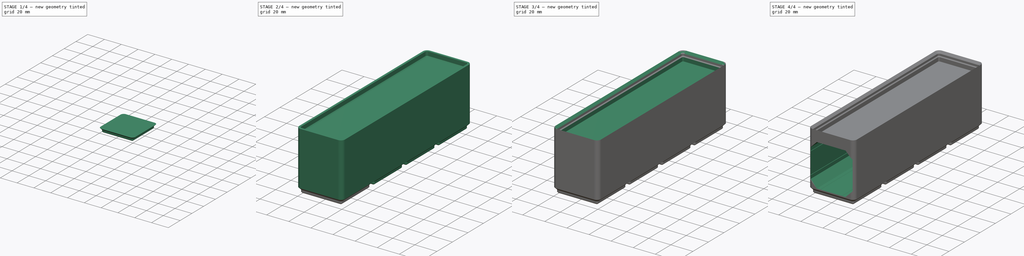
[diagram: build sequence overview — one tinted view per stage of 4, left to right]
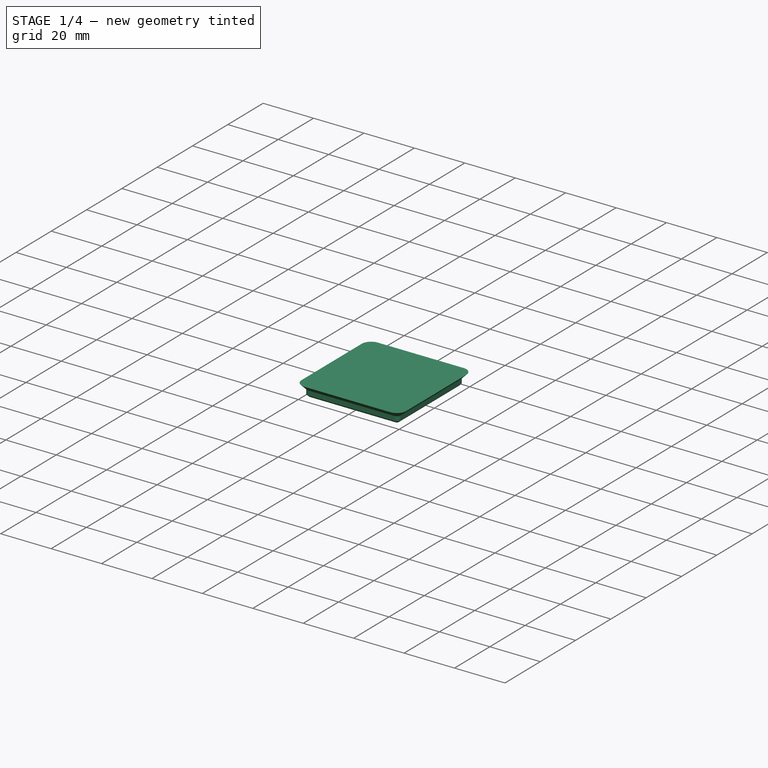
[diagram: stage 1 of 4 — iso view after this stage's code; geometry added in this stage tinted green]
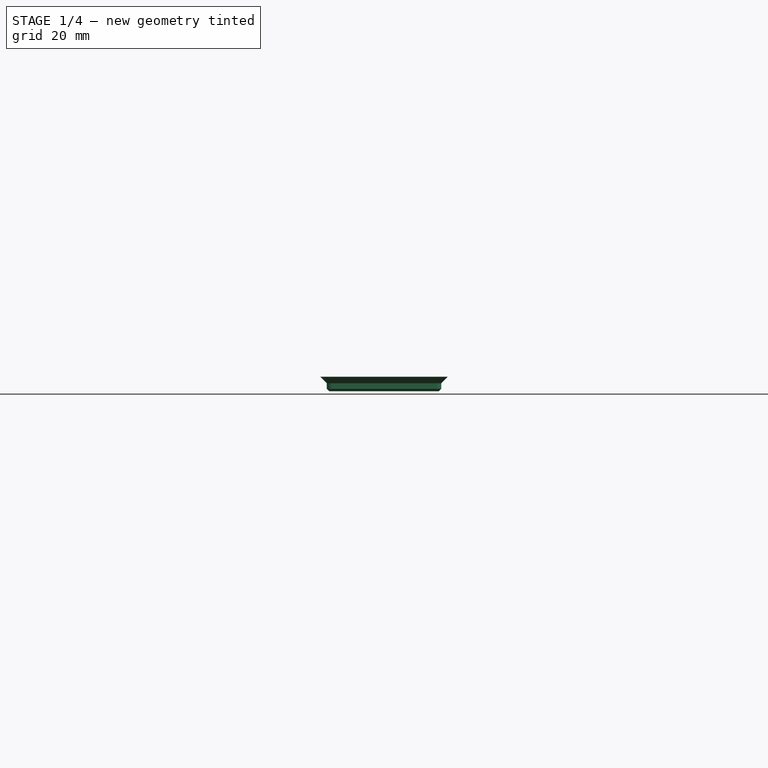
[diagram: stage 1 of 4 — front view after this stage's code; geometry added in this stage tinted green]
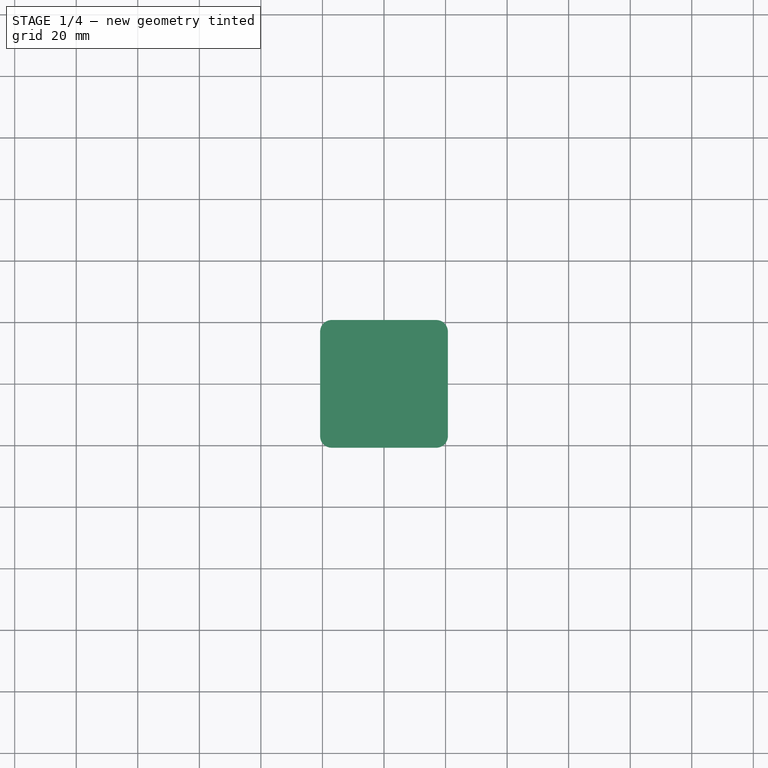
[diagram: stage 1 of 4 — top view after this stage's code; geometry added in this stage tinted green]
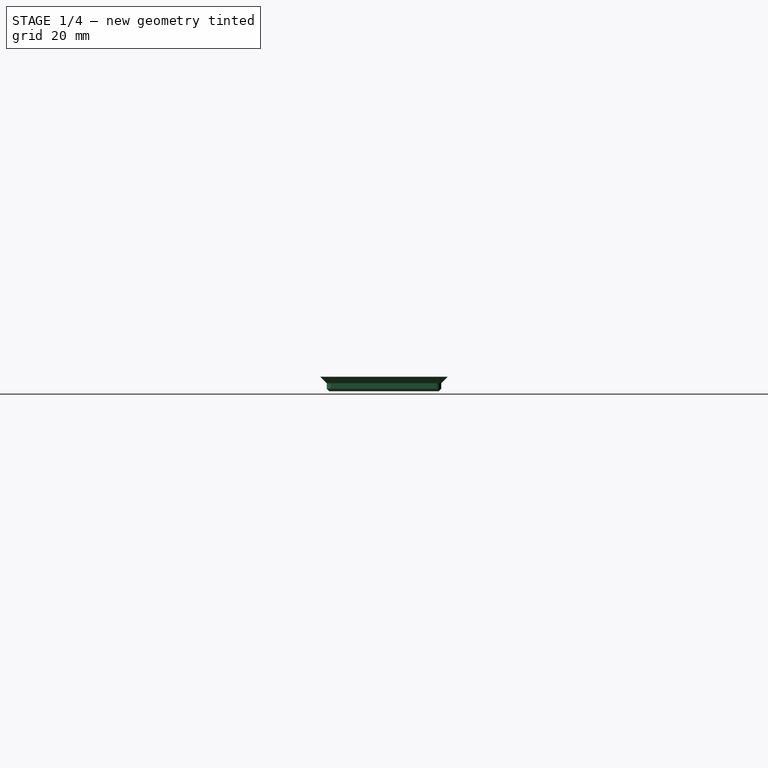
[diagram: stage 1 of 4 — right view after this stage's code; geometry added in this stage tinted green]
FCSTD DOCUMENT  (FreeCAD 1.1R20260223 (Git shallow))
Label: GridfinityScrewdriverSetBin
License: Creative Commons Attribution 4.0
LicenseURL: https://creativecommons.org/licenses/by/4.0/
objects: Sketcher::SketchObject×8, PartDesign::Pad×4, Part::Part2DObjectPython×3, PartDesign::Pocket×3, App::Point×1, PartDesign::FeaturePython×1, PartDesign::SubShapeBinder×1, PartDesign::AdditiveLoft×1, PartDesign::Chamfer×1, PartDesign::Hole×1, PartDesign::Body×1
note: 53 computed .brp shape members not serialized (recipe doc carries the construction recipe); baked Part::Feature solids carry a one-line shape summary decoded from their .brp

FEATURE [App::Point] Origin002  label="Origin"
  Role = Origin
FEATURE [Sketcher::SketchObject] Sketch006
  ArcFitTolerance = 1e-06
  AttachmentSupport = -> [Origin]
  ExternalTypes = [0]
  FullyConstrained = true
  MakeInternals = false
  MapMode = 5
  expr: Constraints[10] = href(<<Gridfinity Tray>>.Width) * 42 - 16
  expr: Constraints[11] = href(<<Gridfinity Tray>>.Depth) * 42 - 16
  sketch-geometry (4):
    g0: Circle CenterX=-13 CenterY=-13 CenterZ=0 NormalX=0 NormalY=0 NormalZ=1 AngleXU=0 Radius=3.25
    g1: Circle CenterX=-13 CenterY=139 CenterZ=0 NormalX=0 NormalY=0 NormalZ=1 AngleXU=0 Radius=3.25
    g2: Circle CenterX=13 CenterY=139 CenterZ=0 NormalX=0 NormalY=0 NormalZ=1 AngleXU=0 Radius=3.25
    g3: Circle CenterX=13 CenterY=-13 CenterZ=0 NormalX=0 NormalY=0 NormalZ=1 AngleXU=0 Radius=3.25
  constraints (12):
    c: Equal(g2,g1)
    c: Equal(g1,g0)
    c: Equal(g0,g3)
    c: Diameter(g0) = 6.5
    c: Horizontal(g1,g2)
    c: Horizontal(g0,g3)
    c: Vertical(g1,g0)
    c: Vertical(g2,g3)
    c: DistanceY(g0,g-1) = 13
    c: DistanceX(g0,g-1) = 13
    c: DistanceX(g0,g3) = 26
    c: DistanceY(g0,g1) = 152
FEATURE [Sketcher::SketchObject] Sketch
  ArcFitTolerance = 1e-06
  AttachmentSupport = -> [XY_Plane]
  ExternalTypes = [0]
  FullyConstrained = true
  MakeInternals = false
  MapMode = 5
  sketch-geometry (10):
    g0: LineSegment StartX=-17.8 StartY=17 StartZ=0 EndX=-17.8 EndY=-17 EndZ=0
    g1: LineSegment StartX=-17 StartY=-17.8 StartZ=0 EndX=17 EndY=-17.8 EndZ=0
    g2: LineSegment StartX=17.8 StartY=-17 StartZ=0 EndX=17.8 EndY=17 EndZ=0
    g3: LineSegment StartX=17 StartY=17.8 StartZ=0 EndX=-17 EndY=17.8 EndZ=0
    g4: ArcOfCircle CenterX=-17 CenterY=17 CenterZ=0 NormalX=0 NormalY=0 NormalZ=1 AngleXU=0 Radius=0.8 StartAngle=1.5708 EndAngle=3.14159
    g5: ArcOfCircle CenterX=-17 CenterY=-17 CenterZ=0 NormalX=0 NormalY=0 NormalZ=1 AngleXU=0 Radius=0.8 StartAngle=3.14159 EndAngle=4.71239
    g6: ArcOfCircle CenterX=17 CenterY=-17 CenterZ=0 NormalX=0 NormalY=0 NormalZ=1 AngleXU=0 Radius=0.8 StartAngle=4.71239 EndAngle=6.28319
    g7: ArcOfCircle CenterX=17 CenterY=17 CenterZ=0 NormalX=0 NormalY=0 NormalZ=1 AngleXU=0 Radius=0.8 StartAngle=9.76e-14 EndAngle=1.5708
    g8: GeomPoint [constr] X=-17.8 Y=17.8 Z=0
    g9: GeomPoint [constr] X=17.8 Y=-17.8 Z=0
  constraints (23):
    c: Tangent(g0,g4) = -1.5708
    c: Tangent(g0,g5) = -1.5708
    c: Tangent(g1,g5) = -1.5708
    c: Tangent(g1,g6) = -1.5708
    c: Tangent(g2,g6) = -1.5708
    c: Tangent(g2,g7) = -1.5708
    c: Tangent(g3,g7) = -1.5708
    c: Tangent(g3,g4) = -1.5708
    c: Vertical(g0)
    c: Vertical(g2)
    c: Horizontal(g1)
    c: Horizontal(g3)
    c: Equal(g4,g5)
    c: Equal(g5,g6)
    c: Equal(g6,g7)
    c: PointOnObject(g8,g0)
    c: PointOnObject(g8,g3)
    c: PointOnObject(g9,g1)
    c: PointOnObject(g9,g2)
    c: Symmetric(g8,g9,g-1)
    c: Equal(g3,g2)
    c: DistanceY(g9,g8) = 35.6
    c: Diameter(g5) = 1.6
FEATURE [PartDesign::Pad] Pad
  Direction = (0,0,1)
  Length = 0.8
  Length2 = 10
  Profile = -> Sketch
  ReferenceAxis = -> Sketch [N_Axis]
  SideType = 0
  Suppressed = false
  TaperAngle = 45
  Type = 0
  Type2 = 0
FEATURE [PartDesign::Pad] Pad001
  BaseFeature = -> Pad
  Direction = (0,0,1)
  Length = 1.8
  Length2 = 10
  Profile = -> Pad [Edge3,Edge24,Edge22,Edge19,Edge16,Edge13,Edge10,Edge7]
  SideType = 0
  Suppressed = false
  Type = 0
  Type2 = 0
FEATURE [PartDesign::Pad] Pad002
  BaseFeature = -> Pad001
  Direction = (0,0,1)
  Length = 2.15
  Length2 = 10
  Profile = -> Pad001 [Edge16,Edge31,Edge32,Edge33,Edge34,Edge35,Edge36,Edge29]
  SideType = 0
  Suppressed = false
  TaperAngle = 45
  Type = 0
  Type2 = 0
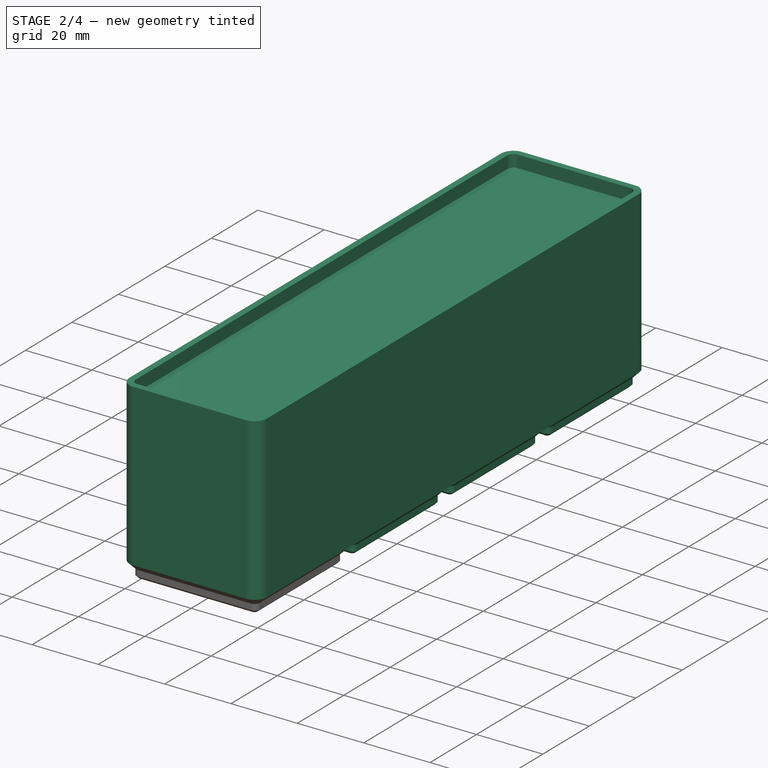
[diagram: stage 2 of 4 — iso view after this stage's code; geometry added in this stage tinted green]
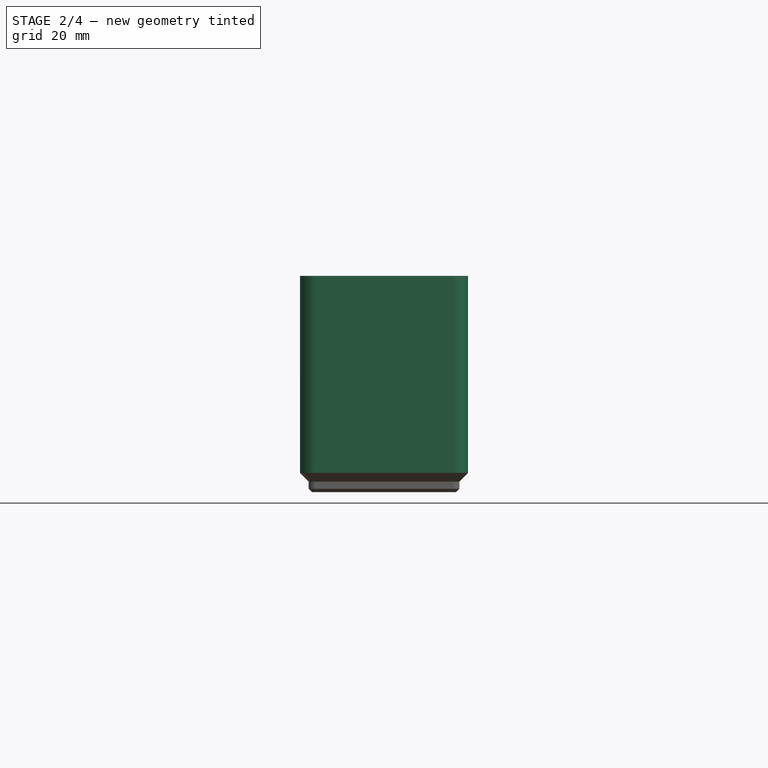
[diagram: stage 2 of 4 — front view after this stage's code; geometry added in this stage tinted green]
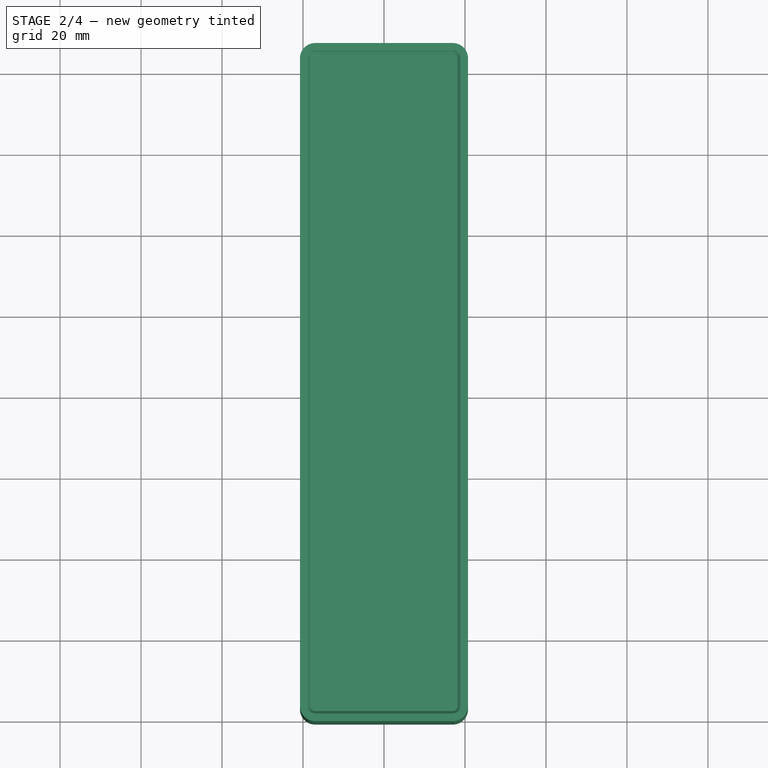
[diagram: stage 2 of 4 — top view after this stage's code; geometry added in this stage tinted green]
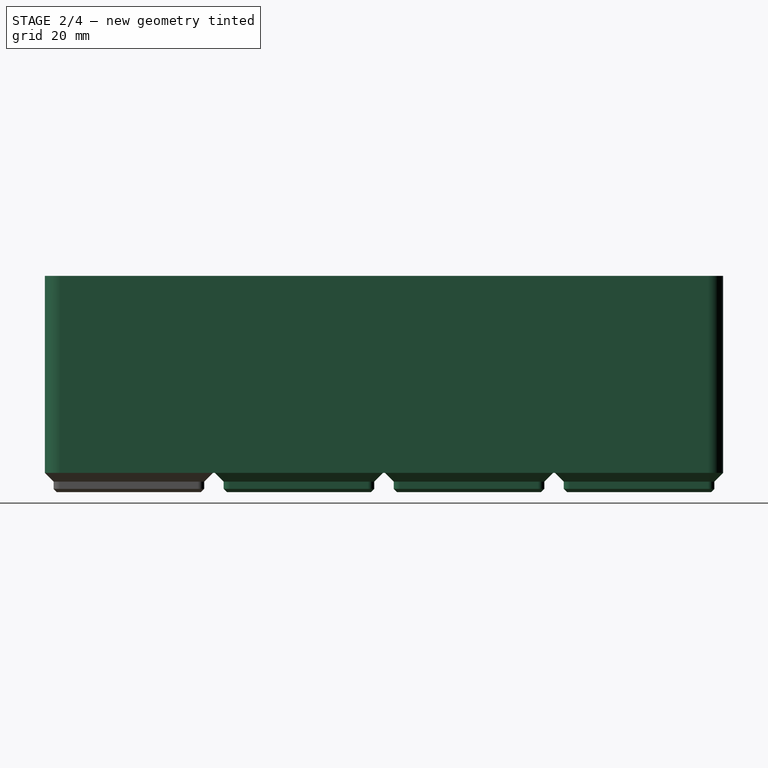
[diagram: stage 2 of 4 — right view after this stage's code; geometry added in this stage tinted green]
FEATURE [Sketcher::SketchObject] Sketch001
  ArcFitTolerance = 1e-06
  AttachmentSupport = -> [Pad002]
  ExternalGeometry = -> [Pad002]
  ExternalTypes = [0]
  FullyConstrained = true
  MakeInternals = false
  MapMode = 5
  Placement = pos=(0,0,4.75) rot=(0,0,1;0rad)
  expr: Constraints[25] = href(<<Gridfinity Tray>>.Width) * 42 - 0.5
  expr: Constraints[26] = href(<<Gridfinity Tray>>.Depth) * 42 - 0.5
  sketch-geometry (8):
    g0: ArcOfCircle CenterX=-17 CenterY=-17 CenterZ=0 NormalX=0 NormalY=0 NormalZ=1 AngleXU=0 Radius=3.75 StartAngle=3.14159 EndAngle=4.71239
    g1: LineSegment StartX=-20.75 StartY=-17 StartZ=0 EndX=-20.75 EndY=143 EndZ=0
    g2: LineSegment StartX=-17 StartY=-20.75 StartZ=0 EndX=17 EndY=-20.75 EndZ=0
    g3: ArcOfCircle CenterX=-17 CenterY=143 CenterZ=0 NormalX=0 NormalY=0 NormalZ=1 AngleXU=0 Radius=3.75 StartAngle=1.5708 EndAngle=3.14159
    g4: ArcOfCircle CenterX=17 CenterY=-17 CenterZ=0 NormalX=0 NormalY=0 NormalZ=1 AngleXU=0 Radius=3.75 StartAngle=4.71239 EndAngle=6.28319
    g5: LineSegment StartX=-17 StartY=146.75 StartZ=0 EndX=17 EndY=146.75 EndZ=0
    g6: ArcOfCircle CenterX=17 CenterY=143 CenterZ=0 NormalX=0 NormalY=0 NormalZ=1 AngleXU=0 Radius=3.75 StartAngle=0 EndAngle=1.5708
    g7: LineSegment StartX=20.75 StartY=143 StartZ=0 EndX=20.75 EndY=-17 EndZ=0
  constraints (27):
    c: Coincident(g0,g-3)
    c: Vertical(g0,g0)
    c: Horizontal(g0,g0)
    c: Equal(g-3,g0)
    c: Coincident(g1,g0)
    c: Vertical(g1)
    c: Coincident(g2,g0)
    c: Horizontal(g2)
    c: Coincident(g3,g1)
    c: Coincident(g4,g2)
    c: Vertical(g4,g2)
    c: Horizontal(g4,g4)
    c: Horizontal(g1,g3)
    c: Vertical(g3,g3)
    c: Equal(g0,g3)
    c: Equal(g0,g4)
    c: Coincident(g5,g3)
    c: Horizontal(g5)
    c: Vertical(g5,g2)
    c: Coincident(g6,g5)
    c: Vertical(g5,g6)
    c: Horizontal(g6,g6)
    c: Coincident(g7,g6)
    c: Coincident(g7,g4)
    c: Equal(g0,g6)
    c: DistanceX(g0,g4) = 41.5
    c: DistanceY(g2,g5) = 167.5
FEATURE [Part::Part2DObjectPython] LinearArray  label="LinearArrayX"  # Draft 2D object (typed FeaturePython)
  Alignment = 0
  AttacherType = Attacher::AttachEngine3D
  CellStart = A1
  Count = 1
  Dir = (1,0,0)
  DirIsDriven = true
  DistributionLaw = 0
  DrivenProperty = 1
  EndInclusive = true
  ExposePlacement = false
  GeneratorMode = 1
  Link = -> Pad002
  LinkSubelement = Edge6
  MarkerShape = 1
  MarkerSize = 5
  NumElements = 1
  OrientMode = 1
  Point = (-17,-17.8,0)
  PointIsDriven = true
  Reverse = false
  SpanEnd = 34
  SpanStart = 0
  Step = 42
  SubLink = -> Pad002 [Edge6]
  Type = lattice2LinearArray.LinearArray
  VSGVersion = 1
  Values = 0.0
  ValuesSource = 2
  isLattice = 1
  expr: Count = href(<<Gridfinity Tray>>.Width)
FEATURE [Part::Part2DObjectPython] LinearArray001  label="LinearArrayY"  # Draft 2D object (typed FeaturePython)
  Alignment = 0
  AttacherType = Attacher::AttachEngine3D
  CellStart = A1
  Count = 4
  Dir = (0,1,0)
  DirIsDriven = true
  DistributionLaw = 0
  DrivenProperty = 1
  EndInclusive = true
  ExposePlacement = false
  GeneratorMode = 1
  Link = -> Pad002
  LinkSubelement = Edge1
  MarkerShape = 1
  MarkerSize = 5
  NumElements = 4
  OrientMode = 1
  Point = (-17.8,-17,0)
  PointIsDriven = true
  Reverse = true
  SpanEnd = 34
  SpanStart = 0
  Step = 42
  SubLink = -> Pad002 [Edge1]
  Type = lattice2LinearArray.LinearArray
  VSGVersion = 1
  Values = 0.0 | 42.0 | 84.0 | 126.0
  ValuesSource = 2
  isLattice = 1
  expr: Count = href(<<Gridfinity Tray>>.Depth)
FEATURE [Part::Part2DObjectPython] Populate  label="Gridfinity array"  # Draft 2D object (typed FeaturePython)
  AttacherType = Attacher::AttachEngine3D
  Copying = 0
  ExposePlacement = false
  MarkerShape = 1
  MarkerSize = 5
  NumElements = 4
  Object = -> LinearArray
  OutputCompounding = 0
  PlacementsTo = -> LinearArray001
  Referencing = 1
  Type = lattice2PopulateCopies.LatticePopulateCopies
  isLattice = 1
FEATURE [PartDesign::FeaturePython] LatticePattern  label="Gridfinity foundation"  # WARN: FeaturePython — macro-defined, semantics opaque (R4)
  AllowBaseFeature = true
  BaseFeature = -> Pad002
  Debug = false
  FeaturesToCopy = -> [Pad002,Pad,Pad001]
  IgnoreUnsupported = false
  PlacementsTo = -> Populate
  Referencing = 1
  Selfintersections = false
  SignOverride = 0
  SkipFirstInBody = false
  Suppressed = false
FEATURE [PartDesign::Pad] Pad003  label="Tray"
  BaseFeature = -> LatticePattern
  Direction = (0,0,1)
  Length = 44.25
  Length2 = 10
  Profile = -> Sketch001
  ReferenceAxis = -> Sketch001 [N_Axis]
  SideType = 0
  Suppressed = false
  Type = 0
  Type2 = 0
  expr: Length = href(<<Gridfinity Tray>>.Height) * 7 - 4.75
FEATURE [Sketcher::SketchObject] Sketch003
  ArcFitTolerance = 1e-06
  AttachmentOffset = pos=(0,0,0.7) rot=(0,0,1;0rad)
  AttachmentSupport = -> [Pad003]
  ExternalGeometry = -> [Pad003]
  ExternalTypes = [0]
  FullyConstrained = true
  MakeInternals = false
  MapMode = 5
  Placement = pos=(0,0,49.7) rot=(0,0,1;0rad)
  sketch-geometry (16):
    g0: ArcOfCircle CenterX=-17 CenterY=143 CenterZ=0 NormalX=0 NormalY=0 NormalZ=1 AngleXU=0 Radius=3.75 StartAngle=1.5708 EndAngle=3.14159
    g1: ArcOfCircle CenterX=17 CenterY=143 CenterZ=0 NormalX=0 NormalY=0 NormalZ=1 AngleXU=0 Radius=3.75 StartAngle=0 EndAngle=1.5708
    g2: ArcOfCircle CenterX=17 CenterY=-17 CenterZ=0 NormalX=0 NormalY=0 NormalZ=1 AngleXU=0 Radius=3.75 StartAngle=4.71239 EndAngle=6.28319
    g3: ArcOfCircle CenterX=-17 CenterY=-17 CenterZ=0 NormalX=0 NormalY=0 NormalZ=1 AngleXU=0 Radius=3.75 StartAngle=3.14159 EndAngle=4.71239
    g4: LineSegment StartX=-17 StartY=146.75 StartZ=0 EndX=17 EndY=146.75 EndZ=0
    g5: LineSegment StartX=20.75 StartY=143 StartZ=0 EndX=20.75 EndY=-17 EndZ=0
    g6: LineSegment StartX=17 StartY=-20.75 StartZ=0 EndX=-17 EndY=-20.75 EndZ=0
    g7: LineSegment StartX=-20.75 StartY=-17 StartZ=0 EndX=-20.75 EndY=143 EndZ=0
    g8: LineSegment StartX=-18.85 StartY=-17 StartZ=0 EndX=-18.85 EndY=143 EndZ=0
    g9: ArcOfCircle CenterX=-17 CenterY=143 CenterZ=0 NormalX=0 NormalY=0 NormalZ=1 AngleXU=0 Radius=1.85 StartAngle=1.5708 EndAngle=3.14159
    g10: LineSegment StartX=-17 StartY=144.85 StartZ=0 EndX=17 EndY=144.85 EndZ=0
    g11: ArcOfCircle CenterX=17 CenterY=143 CenterZ=0 NormalX=0 NormalY=0 NormalZ=1 AngleXU=0 Radius=1.85 StartAngle=4.8e-15 EndAngle=1.5708
    g12: LineSegment StartX=18.85 StartY=143 StartZ=0 EndX=18.85 EndY=-17 EndZ=0
    g13: ArcOfCircle CenterX=17 CenterY=-17 CenterZ=0 NormalX=0 NormalY=0 NormalZ=1 AngleXU=0 Radius=1.85 StartAngle=4.71239 EndAngle=6.28319
    g14: LineSegment StartX=17 StartY=-18.85 StartZ=0 EndX=-17 EndY=-18.85 EndZ=0
    g15: ArcOfCircle CenterX=-17 CenterY=-17 CenterZ=0 NormalX=0 NormalY=0 NormalZ=1 AngleXU=0 Radius=1.85 StartAngle=3.14159 EndAngle=4.71239
  constraints (39):
    c: Horizontal(g3,g3)
    c: Horizontal(g3,g2)
    c: Horizontal(g2,g2)
    c: Horizontal(g0,g1)
    c: Horizontal(g1,g1)
    c: Horizontal(g0,g0)
    c: Vertical(g0,g0)
    c: Vertical(g1,g1)
    c: Vertical(g2,g2)
    c: Vertical(g3,g3)
    c: Vertical(g0,g3)
    c: Vertical(g1,g2)
    c: Equal(g0,g-3)
    c: Coincident(g2,g-4)
    c: Coincident(g0,g-3)
    c: Tangent(g4,g0) = 1.5708
    c: Coincident(g4,g1)
    c: Tangent(g5,g1) = 1.5708
    c: Coincident(g5,g2)
    c: Coincident(g6,g2)
    c: Tangent(g6,g3) = 1.5708
    c: Coincident(g7,g3)
    c: Coincident(g7,g0)
    c: Tangent(g8,g9) = 1.5708
    c: Tangent(g8,g15) = 1.5708
    c: Tangent(g9,g10) = 1.5708
    c: Tangent(g10,g11) = 1.5708
    c: Tangent(g11,g12) = 1.5708
    c: Tangent(g12,g13) = 1.5708
    c: Tangent(g13,g14) = 1.5708
    c: Tangent(g14,g15) = 1.5708
    c: Vertical(g8)
    c: Vertical(g12)
    c: Horizontal(g10)
    c: Coincident(g2,g13)
    c: Coincident(g9,g0)
    c: Coincident(g11,g1)
    c: Coincident(g3,g15)
    c: DistanceX(g0,g8) = 1.9
FEATURE [PartDesign::SubShapeBinder] Binder
  BindCopyOnChange = 0
  BindMode = 0
  ClaimChildren = false
  Context = -> Body [Binder.]
  Fuse = false
  MakeFace = true
  OffsetFill = false
  OffsetIntersection = false
  OffsetJoinType = 0
  OffsetOpenResult = false
  PartialLoad = false
  Placement = pos=(0,0,3.7) rot=(0,0,1;0rad)
  Relative = true
  Support = -> [Sketch003]
  _Version = 2
FEATURE [Sketcher::SketchObject] Sketch002
  ArcFitTolerance = 1e-06
  AttachmentSupport = -> [Pad003]
  ExternalGeometry = -> [Pad003]
  ExternalTypes = [0]
  FullyConstrained = true
  MakeInternals = false
  MapMode = 5
  Placement = pos=(0,0,49) rot=(0,0,1;0rad)
  sketch-geometry (16):
    g0: ArcOfCircle CenterX=-17 CenterY=143 CenterZ=0 NormalX=0 NormalY=0 NormalZ=1 AngleXU=0 Radius=3.75 StartAngle=1.5708 EndAngle=3.14159
    g1: ArcOfCircle CenterX=17 CenterY=143 CenterZ=0 NormalX=0 NormalY=0 NormalZ=1 AngleXU=0 Radius=3.75 StartAngle=0 EndAngle=1.5708
    g2: ArcOfCircle CenterX=17 CenterY=-17 CenterZ=0 NormalX=0 NormalY=0 NormalZ=1 AngleXU=0 Radius=3.75 StartAngle=4.71239 EndAngle=6.28319
    g3: ArcOfCircle CenterX=-17 CenterY=-17 CenterZ=0 NormalX=0 NormalY=0 NormalZ=1 AngleXU=0 Radius=3.75 StartAngle=3.14159 EndAngle=4.71239
    g4: LineSegment StartX=-17 StartY=146.75 StartZ=0 EndX=17 EndY=146.75 EndZ=0
    g5: LineSegment StartX=20.75 StartY=143 StartZ=0 EndX=20.75 EndY=-17 EndZ=0
    g6: LineSegment StartX=17 StartY=-20.75 StartZ=0 EndX=-17 EndY=-20.75 EndZ=0
    g7: LineSegment StartX=-20.75 StartY=-17 StartZ=0 EndX=-20.75 EndY=143 EndZ=0
    g8: LineSegment StartX=-18.15 StartY=-17 StartZ=0 EndX=-18.15 EndY=143 EndZ=0
    g9: ArcOfCircle CenterX=-17 CenterY=143 CenterZ=0 NormalX=0 NormalY=0 NormalZ=1 AngleXU=0 Radius=1.15 StartAngle=1.5708 EndAngle=3.14159
    g10: LineSegment StartX=-17 StartY=144.15 StartZ=0 EndX=17 EndY=144.15 EndZ=0
    g11: ArcOfCircle CenterX=17 CenterY=143 CenterZ=0 NormalX=0 NormalY=0 NormalZ=1 AngleXU=0 Radius=1.15 StartAngle=9.2e-15 EndAngle=1.5708
    g12: LineSegment StartX=18.15 StartY=143 StartZ=0 EndX=18.15 EndY=-17 EndZ=0
    g13: ArcOfCircle CenterX=17 CenterY=-17 CenterZ=0 NormalX=0 NormalY=0 NormalZ=1 AngleXU=0 Radius=1.15 StartAngle=4.71239 EndAngle=6.28319
    g14: LineSegment StartX=17 StartY=-18.15 StartZ=0 EndX=-17 EndY=-18.15 EndZ=0
    g15: ArcOfCircle CenterX=-17 CenterY=-17 CenterZ=0 NormalX=0 NormalY=0 NormalZ=1 AngleXU=0 Radius=1.15 StartAngle=3.14159 EndAngle=4.71239
  constraints (39):
    c: Coincident(g0,g-3)
    c: Coincident(g2,g-4)
    c: Horizontal(g0,g0)
    c: Horizontal(g1,g1)
    c: Horizontal(g2,g2)
    c: Horizontal(g3,g3)
    c: Vertical(g0,g0)
    c: Vertical(g1,g1)
    c: Vertical(g2,g2)
    c: Vertical(g3,g3)
    c: Vertical(g0,g3)
    c: Vertical(g1,g2)
    c: Horizontal(g3,g2)
    c: Horizontal(g0,g1)
    c: Equal(g0,g-3)
    c: Tangent(g5,g1) = 1.5708
    c: Coincident(g5,g2)
    c: Tangent(g6,g2) = 1.5708
    c: Coincident(g6,g3)
    c: Coincident(g7,g3)
    c: Tangent(g7,g0) = 1.5708
    c: Coincident(g4,g1)
    c: Coincident(g4,g0)
    c: Tangent(g8,g9) = 1.5708
    c: Tangent(g8,g15) = 1.5708
    c: Tangent(g9,g10) = 1.5708
    c: Tangent(g10,g11) = 1.5708
    c: Tangent(g11,g12) = 1.5708
    c: Tangent(g12,g13) = 1.5708
    c: Tangent(g13,g14) = 1.5708
    c: Tangent(g14,g15) = 1.5708
    c: Coincident(g9,g0)
    c: DistanceX(g0,g8) = 2.6
    c: Coincident(g11,g1)
    c: Coincident(g2,g13)
    c: Vertical(g12)
    c: Horizontal(g14)
    c: Coincident(g3,g15)
    c: Vertical(g8)
FEATURE [PartDesign::AdditiveLoft] AdditiveLoft  label="Lip Loft intermediate"
  BaseFeature = -> Pad003
  Closed = false
  Profile = -> Sketch002
  Refine = true
  Ruled = true
  Sections = -> [Sketch003,Binder]
  Suppressed = false
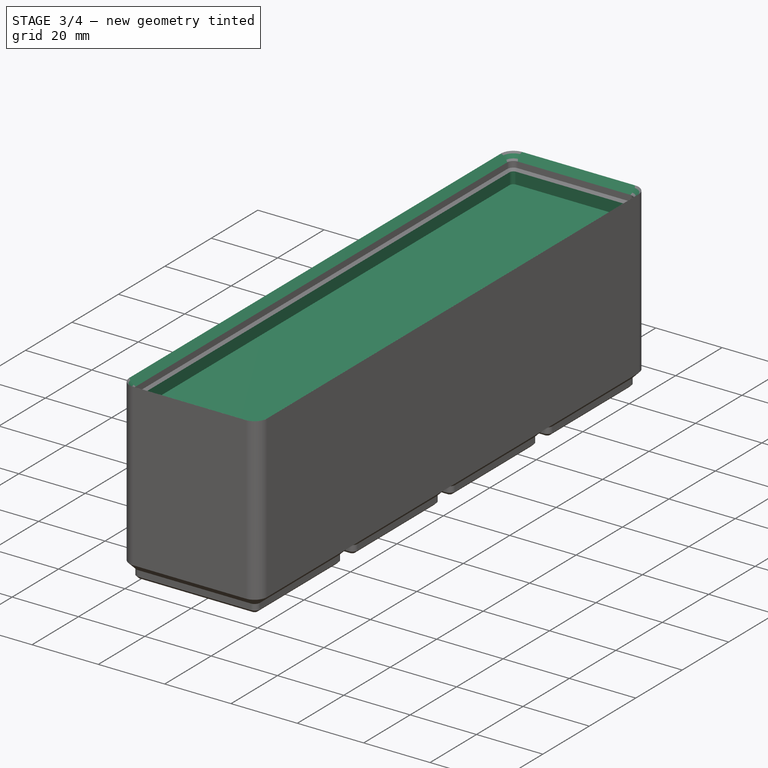
[diagram: stage 3 of 4 — iso view after this stage's code; geometry added in this stage tinted green]
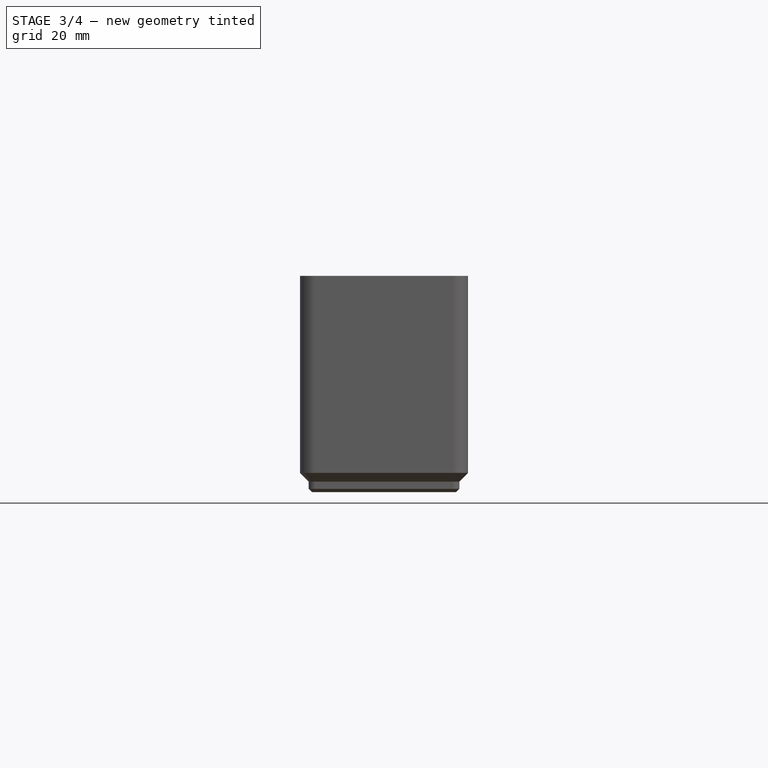
[diagram: stage 3 of 4 — front view after this stage's code; geometry added in this stage tinted green]
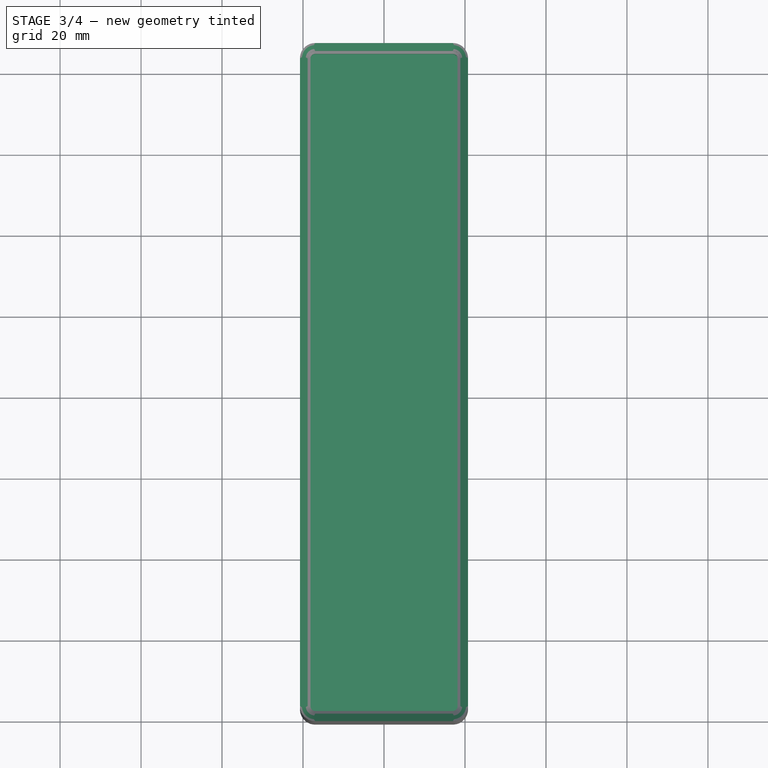
[diagram: stage 3 of 4 — top view after this stage's code; geometry added in this stage tinted green]
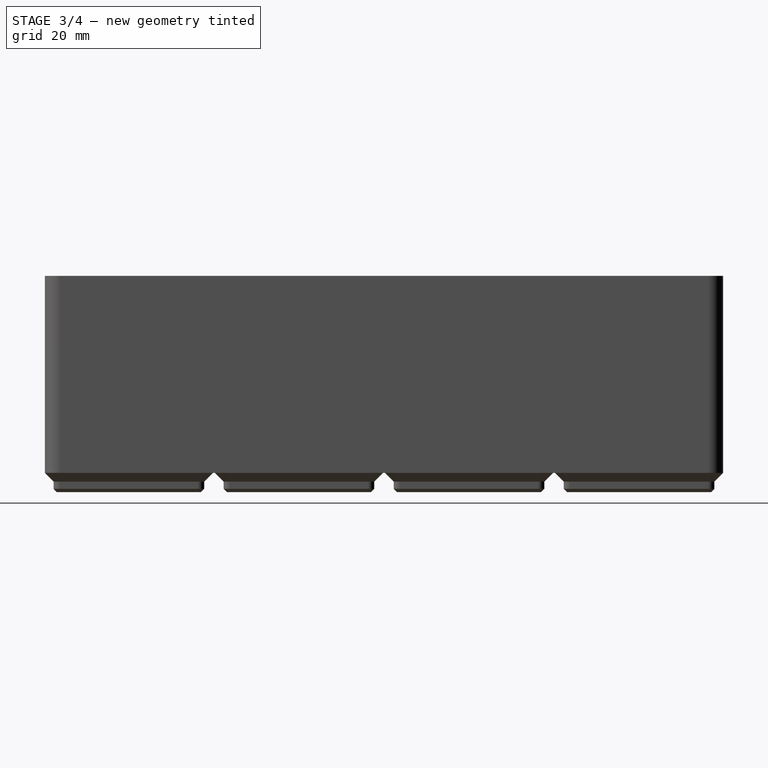
[diagram: stage 3 of 4 — right view after this stage's code; geometry added in this stage tinted green]
FEATURE [PartDesign::Chamfer] Chamfer  label="Lip"
  Angle = 45
  Base = -> AdditiveLoft [Edge221]
  BaseFeature = -> AdditiveLoft
  ChamferType = 0
  FlipDirection = false
  Size = 1.89
  Size2 = 1
  SupportTransform = false
  Suppressed = false
  UseAllEdges = false
FEATURE [Sketcher::SketchObject] Sketch004
  ArcFitTolerance = 1e-06
  AttachmentSupport = -> [Chamfer]
  ExternalGeometry = -> [Chamfer]
  ExternalTypes = [0]
  FullyConstrained = true
  MakeInternals = false
  MapMode = 5
  Placement = pos=(0,0,49) rot=(0,0,1;0rad)
  sketch-geometry (8):
    g0: ArcOfCircle CenterX=-17 CenterY=143 CenterZ=0 NormalX=0 NormalY=0 NormalZ=1 AngleXU=0 Radius=1.15 StartAngle=1.5708 EndAngle=3.14159
    g1: ArcOfCircle CenterX=17 CenterY=143 CenterZ=0 NormalX=0 NormalY=0 NormalZ=1 AngleXU=0 Radius=1.15 StartAngle=0 EndAngle=1.5708
    g2: ArcOfCircle CenterX=17 CenterY=-17 CenterZ=0 NormalX=0 NormalY=0 NormalZ=1 AngleXU=0 Radius=1.15 StartAngle=4.71239 EndAngle=6.28319
    g3: ArcOfCircle CenterX=-17 CenterY=-17 CenterZ=0 NormalX=0 NormalY=0 NormalZ=1 AngleXU=0 Radius=1.15 StartAngle=3.14159 EndAngle=4.71239
    g4: LineSegment StartX=-18.15 StartY=143 StartZ=0 EndX=-18.15 EndY=-17 EndZ=0
    g5: LineSegment StartX=-17 StartY=144.15 StartZ=0 EndX=17 EndY=144.15 EndZ=0
    g6: LineSegment StartX=18.15 StartY=143 StartZ=0 EndX=18.15 EndY=-17 EndZ=0
    g7: LineSegment StartX=17 StartY=-18.15 StartZ=0 EndX=-17 EndY=-18.15 EndZ=0
  constraints (22):
    c: Coincident(g0,g-3)
    c: Coincident(g2,g-4)
    c: Horizontal(g3,g3)
    c: Horizontal(g0,g0)
    c: Horizontal(g1,g1)
    c: Horizontal(g2,g2)
    c: Horizontal(g0,g1)
    c: Horizontal(g3,g2)
    c: Vertical(g3,g3)
    c: Vertical(g0,g-3)
    c: Vertical(g1,g1)
    c: Vertical(g2,g2)
    c: Vertical(g0,g3)
    c: Equal(g-3,g0)
    c: Tangent(g4,g0) = -1.5708
    c: Coincident(g4,g3)
    c: Tangent(g5,g0) = 1.5708
    c: Coincident(g5,g1)
    c: Tangent(g6,g1) = 1.5708
    c: Coincident(g6,g2)
    c: Tangent(g7,g2) = 1.5708
    c: Coincident(g7,g3)
FEATURE [PartDesign::Pocket] Pocket
  BaseFeature = -> Chamfer
  Direction = (0,0,-1)
  Length = 3.5
  Length2 = 5
  Profile = -> Sketch004
  ReferenceAxis = -> Sketch004 [N_Axis]
  Refine = true
  SideType = 0
  Suppressed = false
  Type = 0
  Type2 = 0
  expr: Length = href(<<Gridfinity Tray>>.InnerDepth)
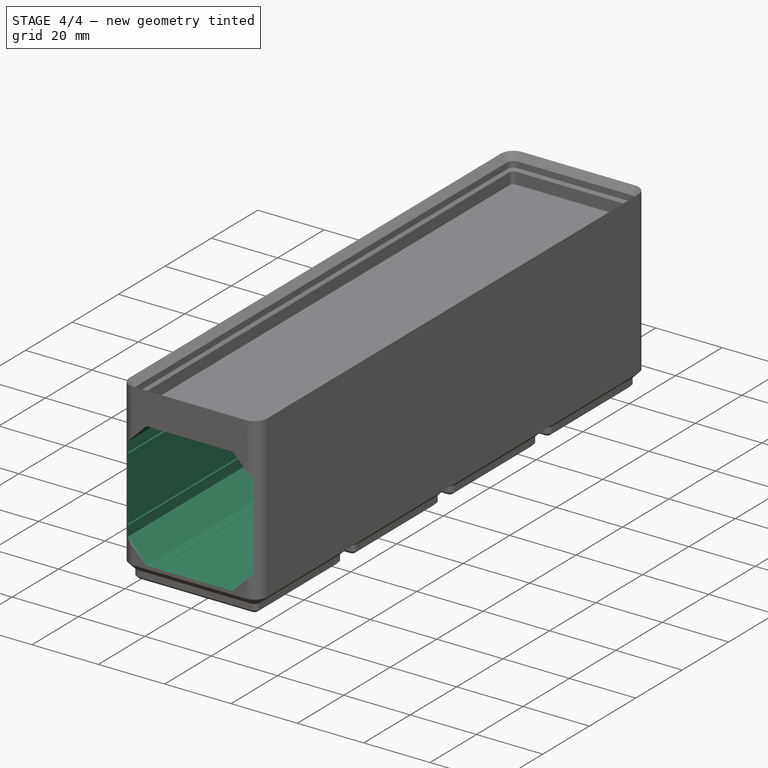
[diagram: stage 4 of 4 — iso view after this stage's code; geometry added in this stage tinted green]
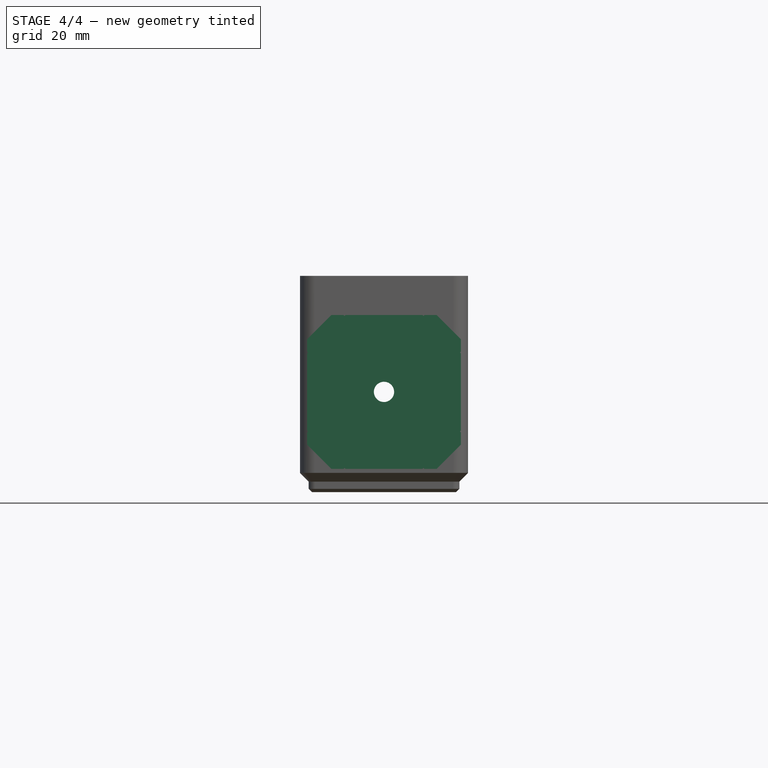
[diagram: stage 4 of 4 — front view after this stage's code; geometry added in this stage tinted green]
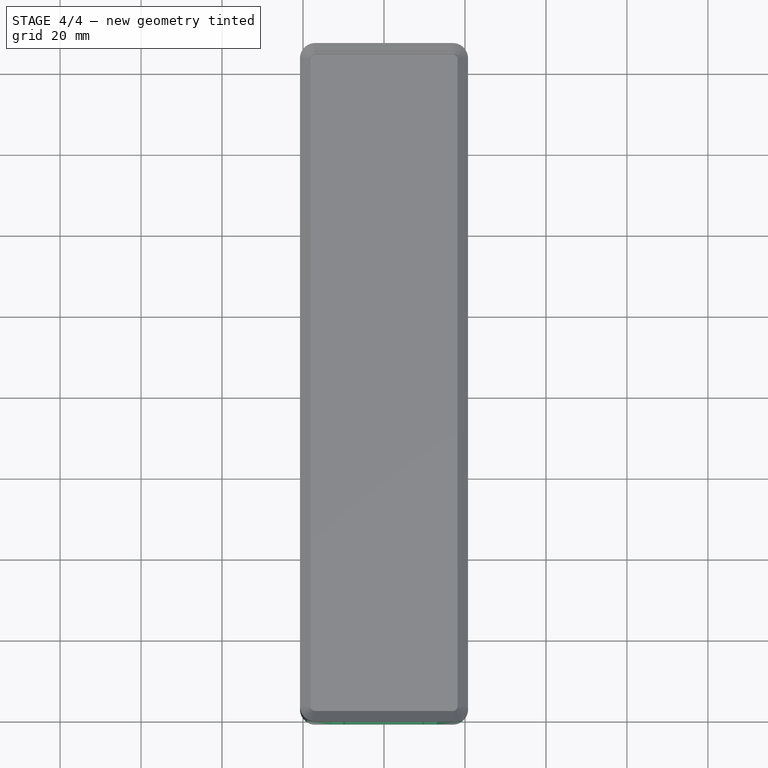
[diagram: stage 4 of 4 — top view after this stage's code; geometry added in this stage tinted green]
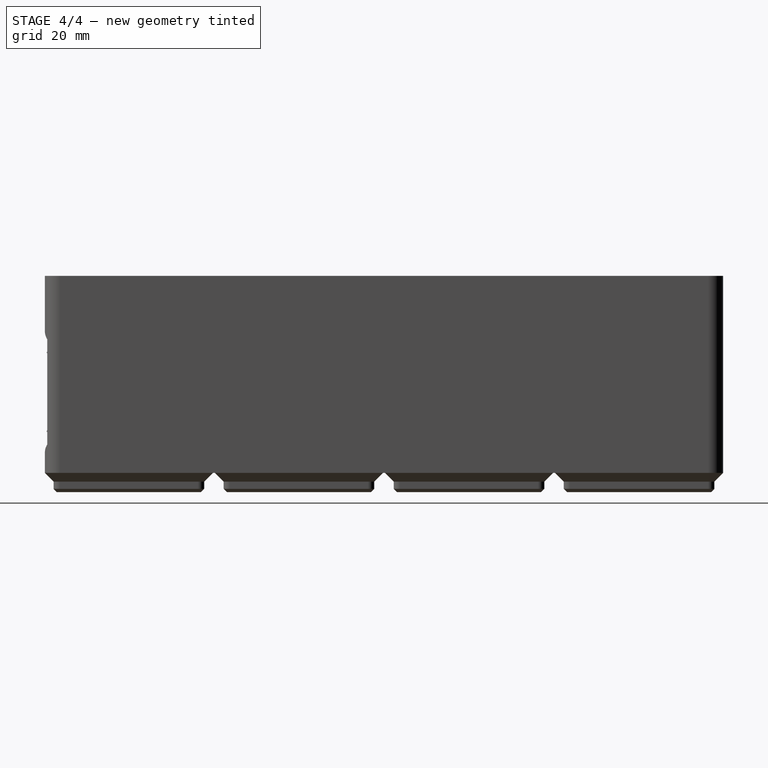
[diagram: stage 4 of 4 — right view after this stage's code; geometry added in this stage tinted green]
FEATURE [PartDesign::Hole] Hole
  BaseFeature = -> Pocket
  BaseProfileType = 7
  CustomThreadClearance = 0
  Depth = 2
  DepthType = 0
  Diameter = 6.5
  DrillForDepth = false
  DrillPoint = 1
  DrillPointAngle = 90
  HoleCutCountersinkAngle = 90
  HoleCutCustomValues = false
  HoleCutDepth = 0
  HoleCutDiameter = 0
  HoleCutType = 0
  ModelThread = false
  Profile = -> Sketch006
  Refine = true
  Reversed = true
  Suppressed = false
  Tapered = false
  TaperedAngle = 90
  ThreadClass = 0
  ThreadDepth = 2
  ThreadDepthType = 0
  ThreadDiameter = 6.5
  ThreadDirection = 0
  ThreadFit = 0
  ThreadSize = 0
  ThreadType = 0
  Threaded = false
  UseCustomThreadClearance = false
FEATURE [Sketcher::SketchObject] Sketch007
  ArcFitTolerance = 1e-06
  AttachmentSupport = -> [Hole]
  ExternalGeometry = -> [Hole]
  ExternalTypes = [0,0]
  FullyConstrained = true
  MakeInternals = false
  MapMode = 5
  Placement = pos=(0,-20.75,0) rot=(1,0,0;1.5708rad)
  sketch-geometry (38):
    g0: LineSegment StartX=-19 StartY=37.7396 StartZ=0 EndX=-12.9896 EndY=43.75 EndZ=0
    g1: LineSegment StartX=-12.9896 StartY=43.75 StartZ=0 EndX=-9.98959 EndY=43.75 EndZ=0
    g2: LineSegment StartX=12.9896 StartY=43.75 StartZ=0 EndX=19 EndY=37.7396 EndZ=0
    g3: LineSegment StartX=19 StartY=37.7396 StartZ=0 EndX=19 EndY=34.7396 EndZ=0
    g4: LineSegment StartX=19 StartY=11.7604 StartZ=0 EndX=12.9896 EndY=5.75 EndZ=0
    g5: LineSegment StartX=12.9896 StartY=5.75 StartZ=0 EndX=9.98959 EndY=5.75 EndZ=0
    g6: LineSegment StartX=-12.9896 StartY=5.75 StartZ=0 EndX=-19 EndY=11.7604 EndZ=0
    g7: LineSegment StartX=-19 StartY=11.7604 StartZ=0 EndX=-19 EndY=14.7604 EndZ=0
    g8: GeomPoint [constr] X=8.662e-13 Y=24.75 Z=0
    g9: LineSegment [constr] StartX=-19 StartY=37.7396 StartZ=0 EndX=19 EndY=11.7604 EndZ=0
    g10: LineSegment [constr] StartX=-12.9896 StartY=43.75 StartZ=0 EndX=12.9896 EndY=5.75 EndZ=0
    g11: GeomPoint [constr] X=8.662e-13 Y=26.875 Z=0
    g12: LineSegment StartX=-9.98959 StartY=43.75 StartZ=0 EndX=-9.73959 EndY=43.5 EndZ=0
    g13: LineSegment StartX=-9.73959 StartY=43.5 StartZ=0 EndX=-9.48959 EndY=43.75 EndZ=0
    g14: LineSegment StartX=-9.48959 StartY=43.75 StartZ=0 EndX=9.48959 EndY=43.75 EndZ=0
    g15: LineSegment StartX=9.48959 StartY=43.75 StartZ=0 EndX=9.73959 EndY=43.5 EndZ=0
    g16: LineSegment StartX=9.73959 StartY=43.5 StartZ=0 EndX=9.98959 EndY=43.75 EndZ=0
    g17: LineSegment StartX=9.98959 StartY=43.75 StartZ=0 EndX=12.9896 EndY=43.75 EndZ=0
    g18: LineSegment StartX=19 StartY=34.7396 StartZ=0 EndX=18.75 EndY=34.4896 EndZ=0
    g19: LineSegment StartX=18.75 StartY=34.4896 StartZ=0 EndX=19 EndY=34.2396 EndZ=0
    g20: LineSegment StartX=19 StartY=34.2396 StartZ=0 EndX=19 EndY=15.2604 EndZ=0
    g21: LineSegment StartX=19 StartY=15.2604 StartZ=0 EndX=18.75 EndY=15.0104 EndZ=0
    g22: LineSegment StartX=18.75 StartY=15.0104 StartZ=0 EndX=19 EndY=14.7604 EndZ=0
    g23: LineSegment StartX=19 StartY=14.7604 StartZ=0 EndX=19 EndY=11.7604 EndZ=0
    g24: LineSegment StartX=9.98959 StartY=5.75 StartZ=0 EndX=9.73959 EndY=6 EndZ=0
    g25: LineSegment StartX=9.73959 StartY=6 StartZ=0 EndX=9.48959 EndY=5.75 EndZ=0
    g26: LineSegment StartX=9.48959 StartY=5.75 StartZ=0 EndX=-9.48959 EndY=5.75 EndZ=0
    g27: LineSegment StartX=-9.48959 StartY=5.75 StartZ=0 EndX=-9.73959 EndY=6 EndZ=0
    g28: LineSegment StartX=-9.73959 StartY=6 StartZ=0 EndX=-9.98959 EndY=5.75 EndZ=0
    g29: LineSegment StartX=-9.98959 StartY=5.75 StartZ=0 EndX=-12.9896 EndY=5.75 EndZ=0
    g30: LineSegment StartX=-19 StartY=14.7604 StartZ=0 EndX=-18.75 EndY=15.0104 EndZ=0
    g31: LineSegment StartX=-18.75 StartY=15.0104 StartZ=0 EndX=-19 EndY=15.2604 EndZ=0
    g32: LineSegment StartX=-19 StartY=15.2604 StartZ=0 EndX=-19 EndY=34.2396 EndZ=0
    g33: LineSegment StartX=-19 StartY=34.2396 StartZ=0 EndX=-18.75 EndY=34.4896 EndZ=0
    g34: LineSegment StartX=-18.75 StartY=34.4896 StartZ=0 EndX=-19 EndY=34.7396 EndZ=0
    g35: LineSegment StartX=-19 StartY=34.7396 StartZ=0 EndX=-19 EndY=37.7396 EndZ=0
    g36: LineSegment [constr] StartX=-12.9896 StartY=43.75 StartZ=0 EndX=-12.9896 EndY=5.75 EndZ=0
    g37: LineSegment [constr] StartX=-19 StartY=37.7396 StartZ=0 EndX=19 EndY=37.7396 EndZ=0
  constraints (105):
    c: Coincident(g0,g1)
    c: Coincident(g17,g2)
    c: Coincident(g2,g3)
    c: Coincident(g23,g4)
    c: Coincident(g4,g5)
    c: Coincident(g29,g6)
    c: Coincident(g6,g7)
    c: Coincident(g35,g0)
    c: Equal(g0,g2)
    c: Equal(g2,g4)
    c: Equal(g4,g6)
    c: Symmetric(g6,g2,g8)
    c: Horizontal(g0,g2)
    c: Coincident(g9,g0)
    c: Coincident(g9,g23)
    c: Coincident(g10,g0)
    c: Coincident(g10,g4)
    c: Equal(g10,g9)
    c: Distance(g2,g2) = 8.5
    c: DistanceX(g6,g23) = 38
    c: Symmetric(g-3,g-4,g11)
    c: Vertical(g8,g11)
    c: DistanceY(g-3,g29) = 1
    c: Horizontal(g1)
    c: Coincident(g1,g12)
    c: Coincident(g12,g13)
    c: Coincident(g13,g14)
    c: Horizontal(g14)
    c: Coincident(g14,g15)
    c: Coincident(g15,g16)
    c: Horizontal(g17)
    c: Coincident(g16,g17)
    c: Vertical(g3)
    c: Coincident(g3,g18)
    c: Coincident(g18,g19)
    c: Coincident(g19,g20)
    c: Vertical(g20)
    c: Coincident(g20,g21)
    c: Coincident(g21,g22)
    c: Vertical(g23)
    c: Coincident(g22,g23)
    c: Horizontal(g5)
    c: Coincident(g5,g24)
    c: Coincident(g24,g25)
    c: Coincident(g25,g26)
    c: Horizontal(g26)
    c: Coincident(g26,g27)
    c: Coincident(g27,g28)
    c: Horizontal(g29)
    c: Coincident(g28,g29)
    c: Vertical(g7)
    c: Coincident(g7,g30)
    c: Coincident(g30,g31)
    c: Coincident(g31,g32)
    c: Vertical(g32)
    c: Coincident(g32,g33)
    c: Coincident(g33,g34)
    c: Vertical(g35)
    c: Coincident(g34,g35)
    c: Horizontal(g28,g26)
    c: Horizontal(g25,g5)
    c: Horizontal(g27,g24)
    c: Vertical(g31,g7)
    c: Vertical(g20,g22)
    c: Vertical(g34,g32)
    c: Vertical(g3,g19)
    c: Horizontal(g1,g13)
    c: Horizontal(g14,g16)
    c: Equal(g12,g13)
    c: Equal(g13,g15)
    c: Equal(g15,g16)
    c: Equal(g16,g18)
    c: Equal(g18,g19)
    c: Equal(g19,g21)
    c: Equal(g21,g22)
    c: Equal(g22,g24)
    c: Equal(g24,g25)
    c: Equal(g25,g27)
    c: Equal(g27,g28)
    c: Equal(g28,g30)
    c: Equal(g30,g31)
    c: Equal(g31,g33)
    c: Equal(g33,g34)
    c: Vertical(g12,g27)
    c: Vertical(g15,g24)
    c: Vertical(g1,g28)
    c: Vertical(g14,g25)
    c: Horizontal(g34,g3)
    c: Horizontal(g32,g19)
    c: Horizontal(g31,g20)
    c: Horizontal(g7,g22)
    c: Equal(g35,g1)
    c: Equal(g1,g17)
    c: Equal(g17,g7)
    c: Symmetric(g4,g0,g8)
    c: Coincident(g36,g0)
    c: Coincident(g36,g6)
    c: Coincident(g37,g0)
    c: Coincident(g37,g2)
    c: Equal(g37,g36)
    c: Angle(g30,g7) = 0.785398
    c: Angle(g12,g1) = 0.785398
    c: Vertical(g33,g30)
    c: DistanceX(g1,g1) = 3
    c: DistanceY(g12,g1) = 0.25
FEATURE [PartDesign::Pocket] Pocket001
  BaseFeature = -> Hole
  Direction = (0,1,-2e-16)
  Length = 152
  Length2 = 5
  Profile = -> Sketch007
  ReferenceAxis = -> Sketch007 [N_Axis]
  SideType = 0
  Suppressed = false
  Type = 0
  Type2 = 0
FEATURE [Sketcher::SketchObject] Sketch008
  ArcFitTolerance = 1e-06
  AttachmentSupport = -> [Pocket001]
  ExternalGeometry = -> [Pocket001]
  ExternalTypes = [0,0]
  FullyConstrained = true
  MakeInternals = false
  MapMode = 5
  Placement = pos=(0,146.75,0) rot=(0,0.707107,0.707107;3.14159rad)
  sketch-geometry (2):
    g0: GeomPoint [constr] X=-8.677e-13 Y=24.75 Z=0
    g1: Circle CenterX=-8.677e-13 CenterY=24.75 CenterZ=0 NormalX=0 NormalY=0 NormalZ=1 AngleXU=0 Radius=2.5
  constraints (3):
    c: Symmetric(g-4,g-3,g0)
    c: Diameter(g1) = 5
    c: Coincident(g1,g0)
FEATURE [PartDesign::Pocket] Pocket002
  BaseFeature = -> Pocket001
  Direction = (0,-1,2e-16)
  Length = 5
  Length2 = 5
  Profile = -> Sketch008
  ReferenceAxis = -> Sketch008 [N_Axis]
  Refine = true
  SideType = 0
  Suppressed = false
  Type = 1
  Type2 = 0
FEATURE [PartDesign::Body] Body  label="Gridfinity Tray"
  AllowCompound = false
  Depth = 4
  Group = -> [Sketch,Pad,Pad001,Pad002,LinearArray,LinearArray001,Populate,LatticePattern,Sketch001,Pad003,Sketch002,Sketch003,Binder,AdditiveLoft,Chamfer,Sketch004,Pocket,Sketch006,Hole,Sketch007,Pocket001,Sketch008,Pocket002]
  Height = 7
  InnerDepth = 3.5
  Origin = -> Origin
  Tip = -> Pocket002
  Width = 1
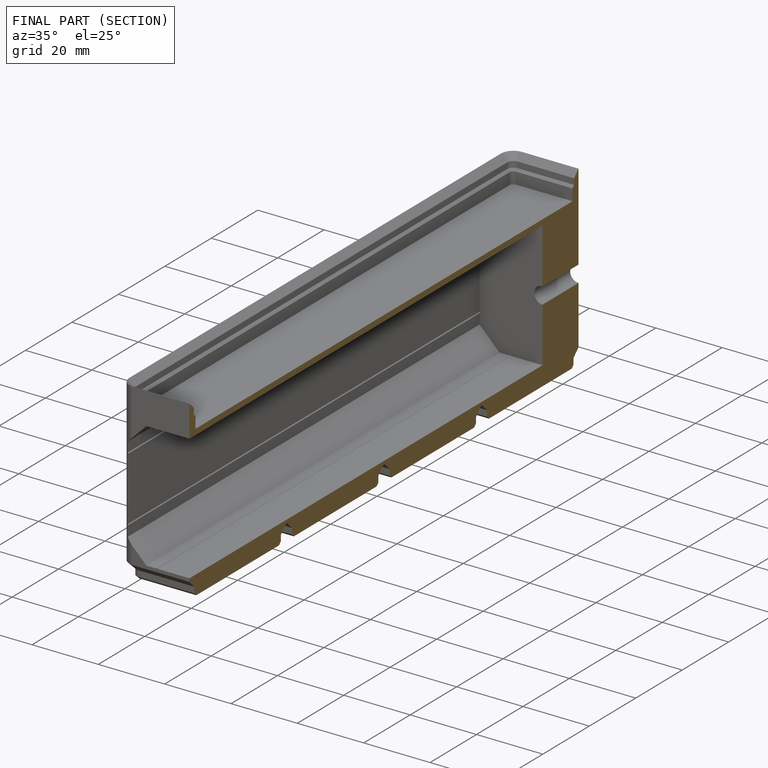
[diagram: finished part — half-section view (interior)]
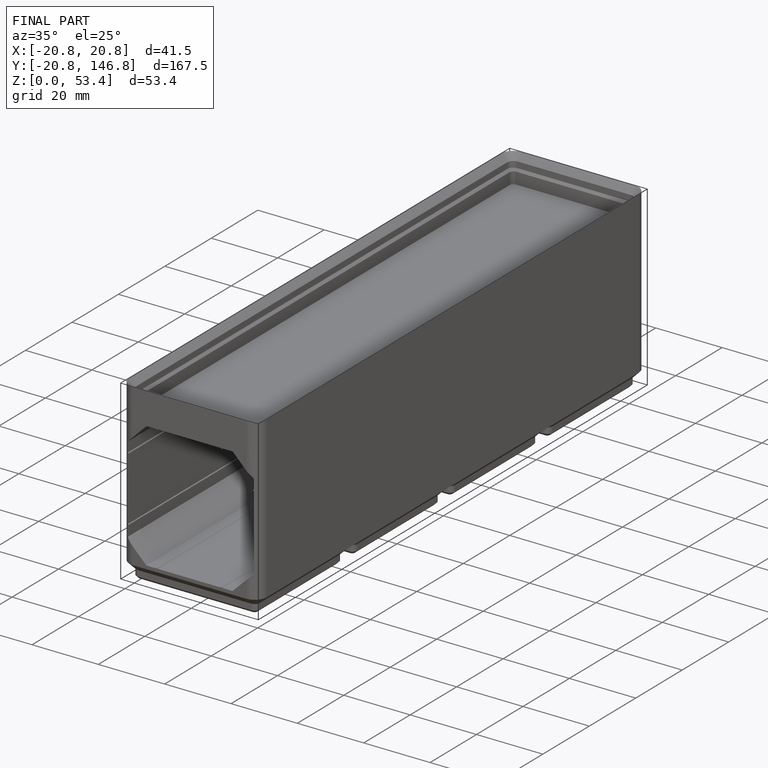
[diagram: finished part — iso view with bounding-box wireframe]
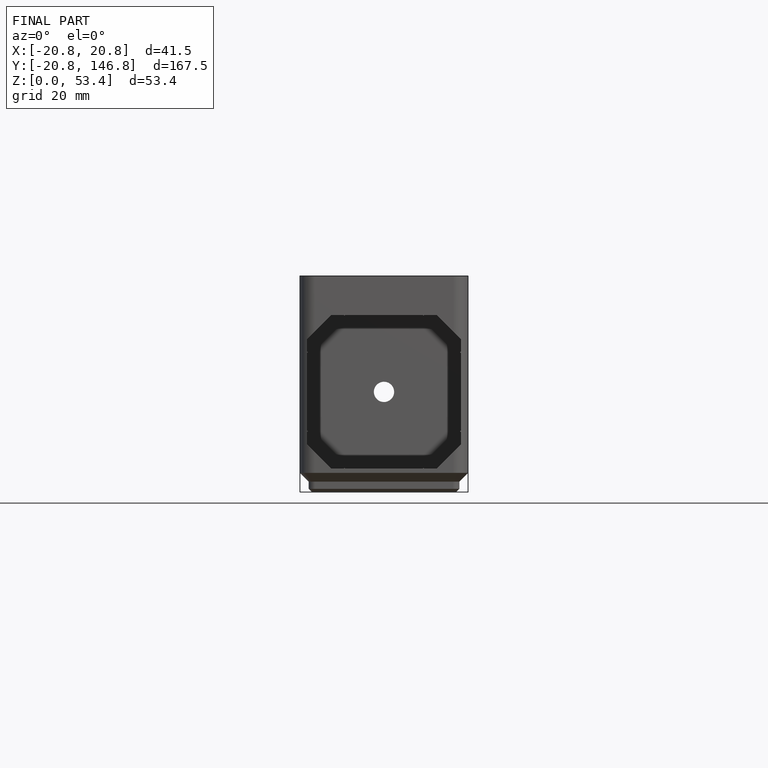
[diagram: finished part — front view with bounding-box wireframe]
